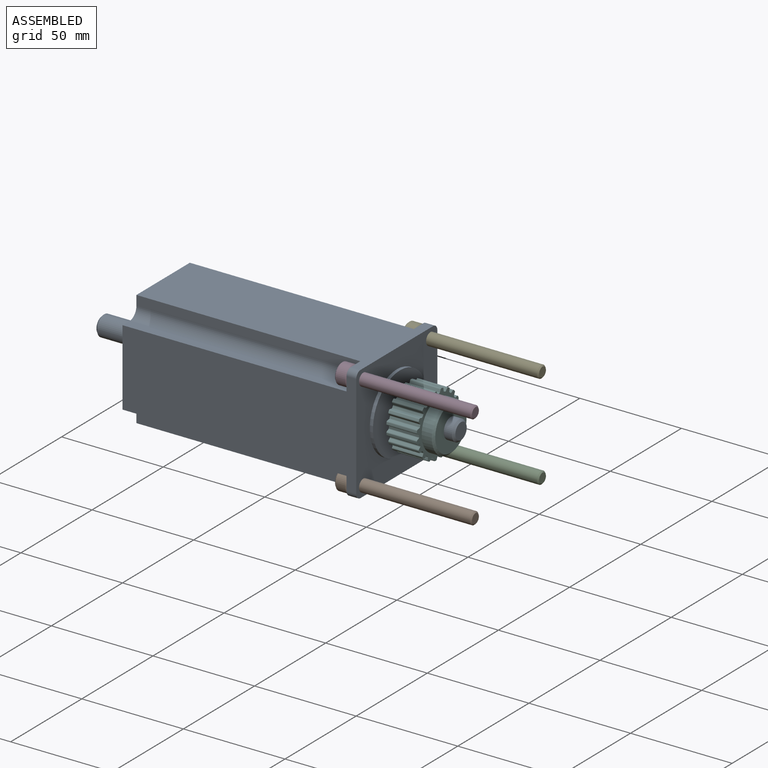
[diagram: assembled view]
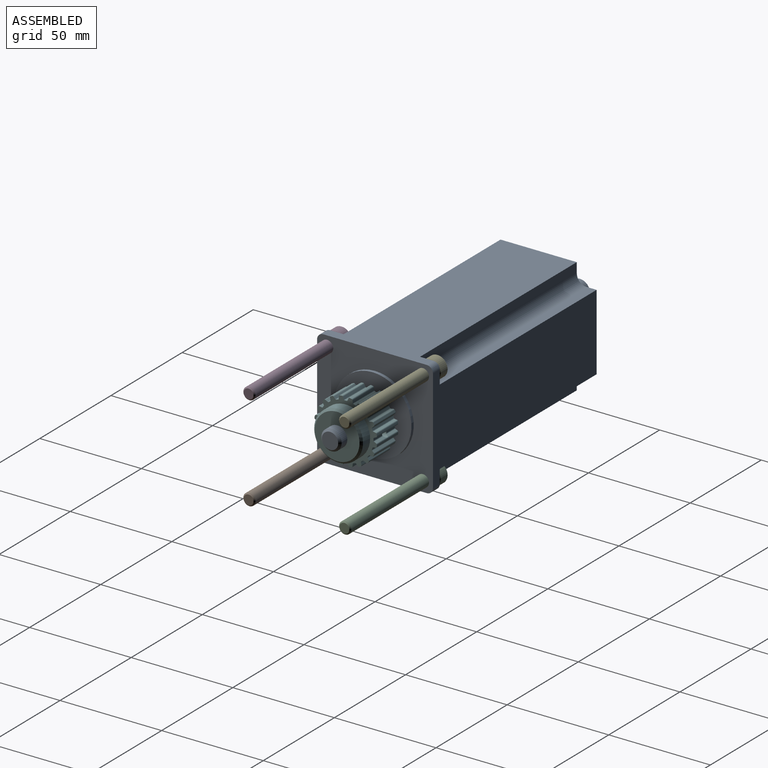
[diagram: assembled view, second angle]
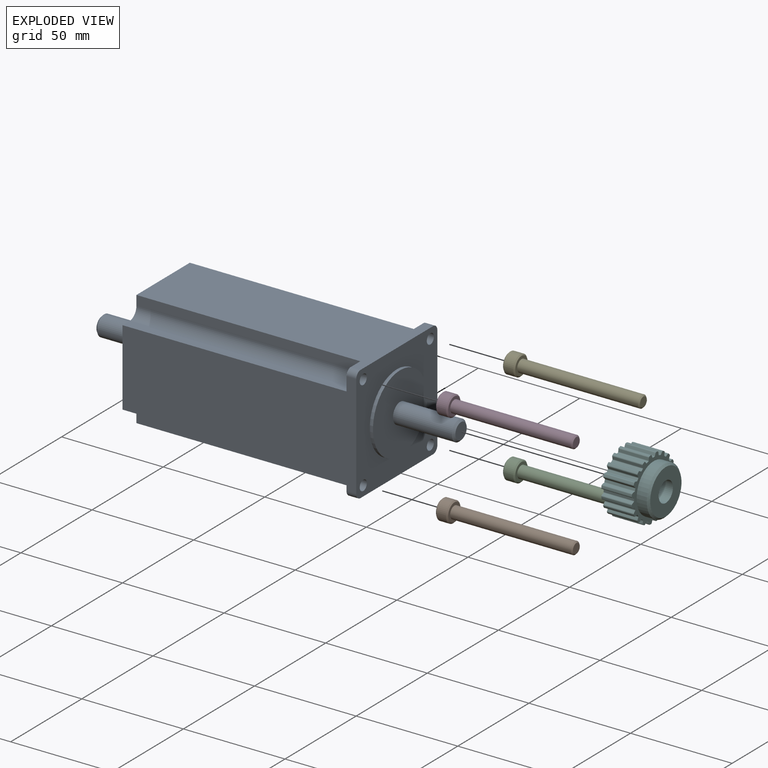
[diagram: exploded view]
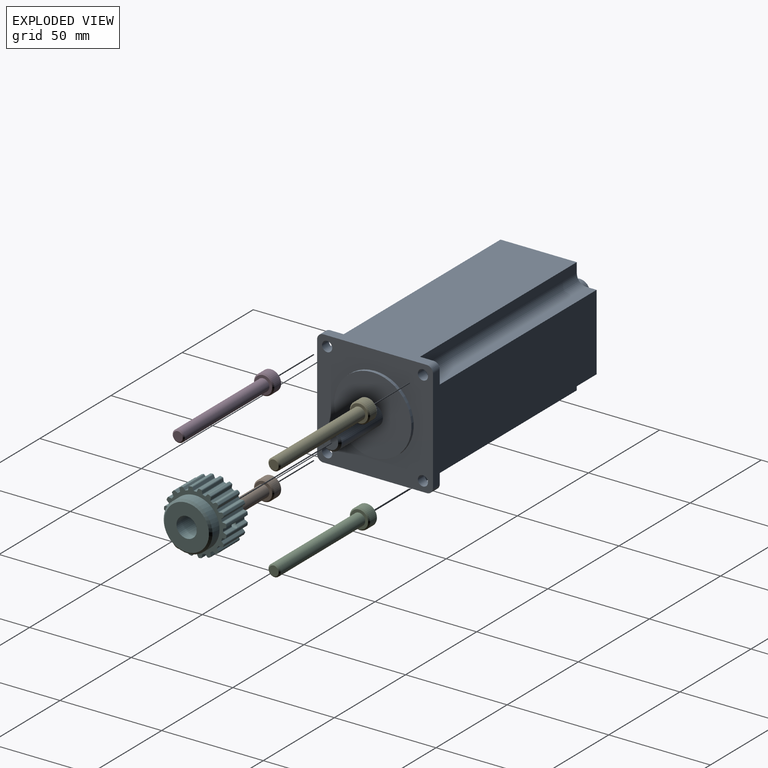
[diagram: exploded view, second angle]
ASSEMBLY  parts=6 mates=5
PART A: 38 faces, bbox 176.6x57x57 mm
  f0: cylinder r=19.05mm len=38.1mm, axis (1,0,0), area 191.5mm2, adj f1,f2
  f1: plane 38.1x38.1mm, normal (1,0,0), area 1061.6mm2, adj f0,f33
  f2: plane 57x57mm, normal (1,0,0), area 2022.6mm2, adj f0,f3,f4,f9,f10,f12,f13,f14
  f3: cylinder r=3mm len=4.8mm, axis (-1,0,0), area 22.6mm2, adj f2,f6,f9,f10
  f4: cylinder r=2.5mm len=5mm, axis (1,0,0), area 75.4mm2, adj f2,f6
  f5: plane 110.2x4.93mm, normal (0,0,1), area 543.3mm2, adj f6,f7,f10,f11
  f6: plane 9.73x9.73mm, normal (-1,0,0), area 68.2mm2, adj f3,f4,f5,f7,f8,f9,f10
  f7: cylinder r=4.8mm len=110.2mm, axis (-1,0,0), area 830.9mm2, adj f5,f6,f8,f11
  f8: plane 110.2x4.93mm, normal (0,-1,0), area 543.3mm2, adj f6,f7,f9,f11
  f9: plane 115x51mm, normal (0,0,1), area 4381.7mm2, adj f2,f3,f6,f8,f11,f16,f24,f25
  f10: plane 115x51mm, normal (0,-1,0), area 4381.7mm2, adj f2,f3,f5,f6,f11,f15,f29,f31
  f11: plane 57x57mm, normal (-1,0,0), area 2811.5mm2, adj f5,f7,f8,f9,f10,f13,f14,f20
  f12: cylinder r=3mm len=4.8mm, axis (-1,0,0), area 22.6mm2, adj f2,f13,f14,f21
  f13: plane 115x51mm, normal (0,0,-1), area 4381.7mm2, adj f2,f11,f12,f15,f21,f23,f28,f29
  f14: plane 115x51mm, normal (0,1,0), area 4381.7mm2, adj f2,f11,f12,f16,f20,f21,f25,f27
  f15: cylinder r=3mm len=4.8mm, axis (-1,0,0), area 22.6mm2, adj f2,f10,f13,f29
  f16: cylinder r=3mm len=4.8mm, axis (-1,0,0), area 22.6mm2, adj f2,f9,f14,f25
  f17: cylinder r=2.5mm len=5mm, axis (1,0,0), area 75.4mm2, adj f2,f29
  f18: cylinder r=2.5mm len=5mm, axis (1,0,0), area 75.4mm2, adj f2,f25
  f19: cylinder r=2.5mm len=5mm, axis (1,0,0), area 75.4mm2, adj f2,f21
  f20: plane 110.2x4.93mm, normal (0,0,-1), area 543.3mm2, adj f11,f14,f21,f22
  f21: plane 9.73x9.73mm, normal (-1,0,0), area 68.2mm2, adj f12,f13,f14,f19,f20,f22,f23
  f22: cylinder r=4.8mm len=110.2mm, axis (-1,0,0), area 830.9mm2, adj f11,f20,f21,f23
  f23: plane 110.2x4.93mm, normal (0,1,0), area 543.3mm2, adj f11,f13,f21,f22
  f24: plane 110.2x4.93mm, normal (0,1,0), area 543.3mm2, adj f9,f11,f25,f26
  f25: plane 9.73x9.73mm, normal (-1,0,0), area 68.2mm2, adj f9,f14,f16,f18,f24,f26,f27
  f26: cylinder r=4.8mm len=110.2mm, axis (-1,0,0), area 830.9mm2, adj f11,f24,f25,f27
  f27: plane 110.2x4.93mm, normal (0,0,1), area 543.3mm2, adj f11,f14,f25,f26
  f28: plane 110.2x4.93mm, normal (0,-1,0), area 543.3mm2, adj f11,f13,f29,f30
  f29: plane 9.73x9.73mm, normal (-1,0,0), area 68.2mm2, adj f10,f13,f15,f17,f28,f30,f31
  f30: cylinder r=4.8mm len=110.2mm, axis (-1,0,0), area 830.9mm2, adj f11,f28,f29,f31
  f31: plane 110.2x4.93mm, normal (0,0,-1), area 543.3mm2, adj f10,f11,f29,f30
  f32: plane 8x8mm, normal (1,0,0), area 50.3mm2, adj f34
  f33: cylinder r=5mm len=29mm, axis (1,0,0), area 911.1mm2, adj f1,f34
  f34: cone r=1mm half-angle=45deg, axis (-1,0,0), area 40mm2, adj f32,f33
  f35: cylinder r=5mm len=29mm, axis (-1,0,0), area 911.1mm2, adj f11,f37
  f36: plane 8x8mm, normal (-1,0,0), area 50.3mm2, adj f37
  f37: cone r=1mm half-angle=45deg, axis (1,0,0), area 40mm2, adj f35,f36
PART B: 15 faces, bbox 66x10x10 mm
  f0: plane 8.8x8.8mm, normal (1,0,0), area 39.2mm2, adj f5,f6,f7,f8,f9,f10,f13
  f1: cylinder r=5mm len=10mm, axis (1,0,0), area 150.8mm2, adj f13,f14
  f2: plane 8.8x8.8mm, normal (-1,0,0), area 32.5mm2, adj f3,f14
  f3: cylinder r=3mm len=59.4mm, axis (1,0,0), area 1119.7mm2, adj f2,f12
  f4: plane 4.8x4.8mm, normal (-1,0,0), area 18.1mm2, adj f12
  f5: plane 4x2.89mm, normal (0,-1,0), area 11.5mm2, adj f0,f6,f10,f11
  f6: plane 4x2.5mm, normal (0,-0.5,-0.87), area 11.5mm2, adj f0,f5,f7,f11
  f7: plane 4x2.5mm, normal (0,0.5,-0.87), area 11.5mm2, adj f0,f6,f8,f11
  f8: plane 4x2.89mm, normal (0,1,0), area 11.5mm2, adj f0,f7,f9,f11
  f9: plane 4x2.5mm, normal (0,0.5,0.87), area 11.5mm2, adj f0,f8,f10,f11
  f10: plane 4x2.5mm, normal (0,-0.5,0.87), area 11.5mm2, adj f0,f5,f9,f11
  f11: plane 5.77x5mm, normal (1,0,0), area 21.7mm2, adj f5,f6,f7,f8,f9,f10
  f12: cone r=3mm half-angle=45deg, axis (1,0,0), area 14.4mm2, adj f3,f4
  f13: cone r=4.4mm half-angle=45deg, axis (-1,0,0), area 25.1mm2, adj f0,f1
  f14: cone r=5mm half-angle=45deg, axis (1,0,0), area 25.1mm2, adj f1,f2
PART C: same geometry as B
PART D: same geometry as B
PART E: same geometry as B
PART F: 178 faces, bbox 21x30.8x30.8 mm
  f0: cylinder r=15.5mm len=15mm, axis (-1,0,0), area 13.1mm2, adj f25,f26,f39,f176
  f1: cylinder r=15.5mm len=15mm, axis (-1,0,0), area 13.1mm2, adj f25,f26,f169,f175
  f2: cylinder r=15.5mm len=15mm, axis (-1,0,0), area 13.1mm2, adj f25,f26,f162,f168
  f3: cylinder r=15.5mm len=15mm, axis (-1,0,0), area 13.1mm2, adj f25,f26,f155,f161
  f4: plane 6.89x1.1mm, normal (0,0.42,-0.91), area 7.9mm2, adj f26,f30,f146,f148
  f5: plane 6.89x1.1mm, normal (0,0.42,0.91), area 7.9mm2, adj f25,f30,f143,f147
  f6: cylinder r=15.5mm len=15mm, axis (-1,0,0), area 13.1mm2, adj f25,f26,f148,f154
  f7: cylinder r=15.5mm len=15mm, axis (-1,0,0), area 13.1mm2, adj f25,f26,f138,f147
  f8: cylinder r=15.5mm len=15mm, axis (-1,0,0), area 13.1mm2, adj f25,f26,f131,f137
  f9: cylinder r=15.5mm len=15mm, axis (-1,0,0), area 13.1mm2, adj f25,f26,f124,f130
  f10: cylinder r=15.5mm len=15mm, axis (-1,0,0), area 13.1mm2, adj f25,f26,f117,f123
  f11: cylinder r=15.5mm len=15mm, axis (-1,0,0), area 13.1mm2, adj f25,f26,f110,f116
  f12: cylinder r=15.5mm len=15mm, axis (-1,0,0), area 13.1mm2, adj f25,f26,f103,f109
  f13: cylinder r=15.5mm len=15mm, axis (-1,0,0), area 13.1mm2, adj f25,f26,f96,f102
  f14: cylinder r=15.5mm len=15mm, axis (-1,0,0), area 13.1mm2, adj f25,f26,f89,f95
  f15: cylinder r=15.5mm len=15mm, axis (-1,0,0), area 13.1mm2, adj f25,f26,f82,f88
  f16: cylinder r=15.5mm len=15mm, axis (-1,0,0), area 13.1mm2, adj f25,f26,f75,f81
  f17: cylinder r=15.5mm len=15mm, axis (-1,0,0), area 13.1mm2, adj f25,f26,f68,f74
  f18: cylinder r=15.5mm len=15mm, axis (-1,0,0), area 13.1mm2, adj f25,f26,f61,f67
  f19: cylinder r=15.5mm len=15mm, axis (-1,0,0), area 13.1mm2, adj f25,f26,f54,f60
  f20: cylinder r=15.5mm len=15mm, axis (-1,0,0), area 13.1mm2, adj f25,f26,f47,f53
  f21: plane 6.89x1.1mm, normal (0,0.91,0.42), area 7.9mm2, adj f26,f29,f38,f40
  f22: plane 6.89x1.1mm, normal (0,-0.91,0.42), area 7.9mm2, adj f25,f29,f35,f39
  f23: cylinder r=5mm len=21mm, axis (-1,0,0), area 645.4mm2, adj f25,f28,f29,f30
  f24: cylinder r=15.5mm len=15mm, axis (-1,0,0), area 13.1mm2, adj f25,f26,f40,f46
  f25: plane 30.75x30.75mm, normal (1,0,0), area 592.7mm2, adj f0,f1,f2,f3,f5,f6,f7,f8
  f26: plane 30.75x30.75mm, normal (-1,0,0), area 218.9mm2, adj f0,f1,f2,f3,f4,f6,f7,f8
  f27: cylinder r=12mm len=24mm, axis (1,0,0), area 377mm2, adj f26,f177
  f28: plane 22x22mm, normal (-1,0,0), area 301.6mm2, adj f23,f177
  f29: cylinder r=1.5mm len=10.44mm, axis (0,0,-1), area 89.6mm2, adj f21,f22,f23,f31,f32,f33,f34,f35
  f30: cylinder r=1.5mm len=10.44mm, axis (0,-1,0), area 89.6mm2, adj f4,f5,f23,f139,f140,f141,f142,f143
  f31: plane 6.08x0.99mm, normal (0,0,1), area 6mm2, adj f26,f29,f37,f38
  f32: plane 6.08x0.99mm, normal (0,0,1), area 6mm2, adj f25,f29,f35,f36
  f33: plane 6.89x1.1mm, normal (0,-0.91,0.42), area 7.9mm2, adj f26,f29,f37,f39
  f34: plane 6.89x1.1mm, normal (0,0.91,0.42), area 7.9mm2, adj f25,f29,f36,f40
  f35: cylinder r=0.4mm len=6.27mm, axis (-1,0,0), area 2.8mm2, adj f22,f25,f29,f32
  f36: cylinder r=0.4mm len=6.27mm, axis (-1,0,0), area 2.8mm2, adj f25,f29,f32,f34
  f37: cylinder r=0.4mm len=6.27mm, axis (-1,0,0), area 2.8mm2, adj f26,f29,f31,f33
  f38: cylinder r=0.4mm len=6.27mm, axis (-1,0,0), area 2.8mm2, adj f21,f26,f29,f31
  f39: cylinder r=0.6mm len=15mm, axis (-1,0,0), area 11.2mm2, adj f0,f22,f25,f26,f29,f33
  f40: cylinder r=0.6mm len=15mm, axis (-1,0,0), area 11.2mm2, adj f21,f24,f25,f26,f29,f34
  f41: plane 15x0.94mm, normal (0,-0.31,0.95), area 14.9mm2, adj f25,f26,f44,f45
  f42: plane 15x1.2mm, normal (0,-0.99,0.12), area 18.2mm2, adj f25,f26,f44,f46
  f43: plane 15x0.89mm, normal (0,0.73,0.68), area 18.2mm2, adj f25,f26,f45,f47
  f44: cylinder r=0.4mm len=15mm, axis (-1,0,0), area 6.8mm2, adj f25,f26,f41,f42
  f45: cylinder r=0.4mm len=15mm, axis (-1,0,0), area 6.8mm2, adj f25,f26,f41,f43
  f46: cylinder r=0.6mm len=15mm, axis (-1,0,0), area 11.4mm2, adj f24,f25,f26,f42
  f47: cylinder r=0.6mm len=15mm, axis (-1,0,0), area 11.4mm2, adj f20,f25,f26,f43
  f48: plane 15x0.8mm, normal (0,-0.59,0.81), area 14.9mm2, adj f25,f26,f51,f52
  f49: plane 15x1.19mm, normal (0,-0.98,-0.19), area 18.2mm2, adj f25,f26,f51,f53
  f50: plane 15x1.06mm, normal (0,0.48,0.87), area 18.2mm2, adj f25,f26,f52,f54
  f51: cylinder r=0.4mm len=15mm, axis (-1,0,0), area 6.8mm2, adj f25,f26,f48,f49
  f52: cylinder r=0.4mm len=15mm, axis (-1,0,0), area 6.8mm2, adj f25,f26,f48,f50
  f53: cylinder r=0.6mm len=15mm, axis (-1,0,0), area 11.4mm2, adj f20,f25,f26,f49
  f54: cylinder r=0.6mm len=15mm, axis (-1,0,0), area 11.4mm2, adj f19,f25,f26,f50
  f55: plane 15x0.8mm, normal (0,-0.81,0.59), area 14.9mm2, adj f25,f26,f58,f59
  f56: plane 15x1.06mm, normal (0,-0.87,-0.48), area 18.2mm2, adj f25,f26,f58,f60
  f57: plane 15x1.19mm, normal (0,0.19,0.98), area 18.2mm2, adj f25,f26,f59,f61
  f58: cylinder r=0.4mm len=15mm, axis (-1,0,0), area 6.8mm2, adj f25,f26,f55,f56
  f59: cylinder r=0.4mm len=15mm, axis (-1,0,0), area 6.8mm2, adj f25,f26,f55,f57
  f60: cylinder r=0.6mm len=15mm, axis (-1,0,0), area 11.4mm2, adj f19,f25,f26,f56
  f61: cylinder r=0.6mm len=15mm, axis (-1,0,0), area 11.4mm2, adj f18,f25,f26,f57
  f62: plane 15x0.94mm, normal (0,-0.95,0.31), area 14.9mm2, adj f25,f26,f65,f66
  f63: plane 15x0.89mm, normal (0,-0.68,-0.73), area 18.2mm2, adj f25,f26,f65,f67
  f64: plane 15x1.2mm, normal (0,-0.12,0.99), area 18.2mm2, adj f25,f26,f66,f68
  f65: cylinder r=0.4mm len=15mm, axis (-1,0,0), area 6.8mm2, adj f25,f26,f62,f63
  f66: cylinder r=0.4mm len=15mm, axis (-1,0,0), area 6.8mm2, adj f25,f26,f62,f64
  f67: cylinder r=0.6mm len=15mm, axis (-1,0,0), area 11.4mm2, adj f18,f25,f26,f63
  f68: cylinder r=0.6mm len=15mm, axis (-1,0,0), area 11.4mm2, adj f17,f25,f26,f64
  f69: plane 15x0.99mm, normal (0,-1,0), area 14.9mm2, adj f25,f26,f72,f73
  f70: plane 15x1.1mm, normal (0,-0.42,-0.91), area 18.2mm2, adj f25,f26,f72,f74
  f71: plane 15x1.1mm, normal (0,-0.42,0.91), area 18.2mm2, adj f25,f26,f73,f75
  f72: cylinder r=0.4mm len=15mm, axis (-1,0,0), area 6.8mm2, adj f25,f26,f69,f70
  f73: cylinder r=0.4mm len=15mm, axis (-1,0,0), area 6.8mm2, adj f25,f26,f69,f71
  f74: cylinder r=0.6mm len=15mm, axis (-1,0,0), area 11.4mm2, adj f17,f25,f26,f70
  f75: cylinder r=0.6mm len=15mm, axis (-1,0,0), area 11.4mm2, adj f16,f25,f26,f71
  f76: plane 15x0.94mm, normal (0,-0.95,-0.31), area 14.9mm2, adj f25,f26,f79,f80
  f77: plane 15x1.2mm, normal (0,-0.12,-0.99), area 18.2mm2, adj f25,f26,f79,f81
  f78: plane 15x0.89mm, normal (0,-0.68,0.73), area 18.2mm2, adj f25,f26,f80,f82
  f79: cylinder r=0.4mm len=15mm, axis (-1,0,0), area 6.8mm2, adj f25,f26,f76,f77
  f80: cylinder r=0.4mm len=15mm, axis (-1,0,0), area 6.8mm2, adj f25,f26,f76,f78
  f81: cylinder r=0.6mm len=15mm, axis (-1,0,0), area 11.4mm2, adj f16,f25,f26,f77
  f82: cylinder r=0.6mm len=15mm, axis (-1,0,0), area 11.4mm2, adj f15,f25,f26,f78
  f83: plane 15x0.8mm, normal (0,-0.81,-0.59), area 14.9mm2, adj f25,f26,f86,f87
  f84: plane 15x1.19mm, normal (0,0.19,-0.98), area 18.2mm2, adj f25,f26,f86,f88
  f85: plane 15x1.06mm, normal (0,-0.87,0.48), area 18.2mm2, adj f25,f26,f87,f89
  f86: cylinder r=0.4mm len=15mm, axis (-1,0,0), area 6.8mm2, adj f25,f26,f83,f84
  f87: cylinder r=0.4mm len=15mm, axis (-1,0,0), area 6.8mm2, adj f25,f26,f83,f85
  f88: cylinder r=0.6mm len=15mm, axis (-1,0,0), area 11.4mm2, adj f15,f25,f26,f84
  f89: cylinder r=0.6mm len=15mm, axis (-1,0,0), area 11.4mm2, adj f14,f25,f26,f85
  f90: plane 15x0.8mm, normal (0,-0.59,-0.81), area 14.9mm2, adj f25,f26,f93,f94
  f91: plane 15x1.06mm, normal (0,0.48,-0.87), area 18.2mm2, adj f25,f26,f93,f95
  f92: plane 15x1.19mm, normal (0,-0.98,0.19), area 18.2mm2, adj f25,f26,f94,f96
  f93: cylinder r=0.4mm len=15mm, axis (-1,0,0), area 6.8mm2, adj f25,f26,f90,f91
  f94: cylinder r=0.4mm len=15mm, axis (-1,0,0), area 6.8mm2, adj f25,f26,f90,f92
  f95: cylinder r=0.6mm len=15mm, axis (-1,0,0), area 11.4mm2, adj f14,f25,f26,f91
  f96: cylinder r=0.6mm len=15mm, axis (-1,0,0), area 11.4mm2, adj f13,f25,f26,f92
  f97: plane 15x0.94mm, normal (0,-0.31,-0.95), area 14.9mm2, adj f25,f26,f100,f101
  f98: plane 15x0.89mm, normal (0,0.73,-0.68), area 18.2mm2, adj f25,f26,f100,f102
  f99: plane 15x1.2mm, normal (0,-0.99,-0.12), area 18.2mm2, adj f25,f26,f101,f103
  f100: cylinder r=0.4mm len=15mm, axis (-1,0,0), area 6.8mm2, adj f25,f26,f97,f98
  f101: cylinder r=0.4mm len=15mm, axis (-1,0,0), area 6.8mm2, adj f25,f26,f97,f99
  f102: cylinder r=0.6mm len=15mm, axis (-1,0,0), area 11.4mm2, adj f13,f25,f26,f98
  f103: cylinder r=0.6mm len=15mm, axis (-1,0,0), area 11.4mm2, adj f12,f25,f26,f99
  f104: plane 15x0.99mm, normal (0,0,-1), area 14.9mm2, adj f25,f26,f107,f108
  f105: plane 15x1.1mm, normal (0,0.91,-0.42), area 18.2mm2, adj f25,f26,f107,f109
  f106: plane 15x1.1mm, normal (0,-0.91,-0.42), area 18.2mm2, adj f25,f26,f108,f110
  f107: cylinder r=0.4mm len=15mm, axis (-1,0,0), area 6.8mm2, adj f25,f26,f104,f105
  f108: cylinder r=0.4mm len=15mm, axis (-1,0,0), area 6.8mm2, adj f25,f26,f104,f106
  f109: cylinder r=0.6mm len=15mm, axis (-1,0,0), area 11.4mm2, adj f12,f25,f26,f105
  f110: cylinder r=0.6mm len=15mm, axis (-1,0,0), area 11.4mm2, adj f11,f25,f26,f106
  f111: plane 15x0.94mm, normal (0,0.31,-0.95), area 14.9mm2, adj f25,f26,f114,f115
  f112: plane 15x1.2mm, normal (0,0.99,-0.12), area 18.2mm2, adj f25,f26,f114,f116
  f113: plane 15x0.89mm, normal (0,-0.73,-0.68), area 18.2mm2, adj f25,f26,f115,f117
  f114: cylinder r=0.4mm len=15mm, axis (-1,0,0), area 6.8mm2, adj f25,f26,f111,f112
  f115: cylinder r=0.4mm len=15mm, axis (-1,0,0), area 6.8mm2, adj f25,f26,f111,f113
  f116: cylinder r=0.6mm len=15mm, axis (-1,0,0), area 11.4mm2, adj f11,f25,f26,f112
  f117: cylinder r=0.6mm len=15mm, axis (-1,0,0), area 11.4mm2, adj f10,f25,f26,f113
  f118: plane 15x0.8mm, normal (0,0.59,-0.81), area 14.9mm2, adj f25,f26,f121,f122
  f119: plane 15x1.19mm, normal (0,0.98,0.19), area 18.2mm2, adj f25,f26,f121,f123
  f120: plane 15x1.06mm, normal (0,-0.48,-0.87), area 18.2mm2, adj f25,f26,f122,f124
  f121: cylinder r=0.4mm len=15mm, axis (-1,0,0), area 6.8mm2, adj f25,f26,f118,f119
  f122: cylinder r=0.4mm len=15mm, axis (-1,0,0), area 6.8mm2, adj f25,f26,f118,f120
  f123: cylinder r=0.6mm len=15mm, axis (-1,0,0), area 11.4mm2, adj f10,f25,f26,f119
  f124: cylinder r=0.6mm len=15mm, axis (-1,0,0), area 11.4mm2, adj f9,f25,f26,f120
  f125: plane 15x0.8mm, normal (0,0.81,-0.59), area 14.9mm2, adj f25,f26,f128,f129
  f126: plane 15x1.06mm, normal (0,0.87,0.48), area 18.2mm2, adj f25,f26,f128,f130
  f127: plane 15x1.19mm, normal (0,-0.19,-0.98), area 18.2mm2, adj f25,f26,f129,f131
  f128: cylinder r=0.4mm len=15mm, axis (-1,0,0), area 6.8mm2, adj f25,f26,f125,f126
  f129: cylinder r=0.4mm len=15mm, axis (-1,0,0), area 6.8mm2, adj f25,f26,f125,f127
  f130: cylinder r=0.6mm len=15mm, axis (-1,0,0), area 11.4mm2, adj f9,f25,f26,f126
  f131: cylinder r=0.6mm len=15mm, axis (-1,0,0), area 11.4mm2, adj f8,f25,f26,f127
  f132: plane 15x0.94mm, normal (0,0.95,-0.31), area 14.9mm2, adj f25,f26,f135,f136
  f133: plane 15x0.89mm, normal (0,0.68,0.73), area 18.2mm2, adj f25,f26,f135,f137
  f134: plane 15x1.2mm, normal (0,0.12,-0.99), area 18.2mm2, adj f25,f26,f136,f138
  f135: cylinder r=0.4mm len=15mm, axis (-1,0,0), area 6.8mm2, adj f25,f26,f132,f133
  f136: cylinder r=0.4mm len=15mm, axis (-1,0,0), area 6.8mm2, adj f25,f26,f132,f134
  f137: cylinder r=0.6mm len=15mm, axis (-1,0,0), area 11.4mm2, adj f8,f25,f26,f133
  f138: cylinder r=0.6mm len=15mm, axis (-1,0,0), area 11.4mm2, adj f7,f25,f26,f134
  f139: plane 6.08x0.99mm, normal (0,1,0), area 6mm2, adj f26,f30,f145,f146
  f140: plane 6.08x0.99mm, normal (0,1,0), area 6mm2, adj f25,f30,f143,f144
  f141: plane 6.89x1.1mm, normal (0,0.42,0.91), area 7.9mm2, adj f26,f30,f145,f147
  f142: plane 6.89x1.1mm, normal (0,0.42,-0.91), area 7.9mm2, adj f25,f30,f144,f148
  f143: cylinder r=0.4mm len=6.27mm, axis (-1,0,0), area 2.8mm2, adj f5,f25,f30,f140
  f144: cylinder r=0.4mm len=6.27mm, axis (-1,0,0), area 2.8mm2, adj f25,f30,f140,f142
  f145: cylinder r=0.4mm len=6.27mm, axis (-1,0,0), area 2.8mm2, adj f26,f30,f139,f141
  f146: cylinder r=0.4mm len=6.27mm, axis (-1,0,0), area 2.8mm2, adj f4,f26,f30,f139
  f147: cylinder r=0.6mm len=15mm, axis (-1,0,0), area 11.2mm2, adj f5,f7,f25,f26,f30,f141
  f148: cylinder r=0.6mm len=15mm, axis (-1,0,0), area 11.2mm2, adj f4,f6,f25,f26,f30,f142
  f149: plane 15x0.94mm, normal (0,0.95,0.31), area 14.9mm2, adj f25,f26,f152,f153
  f150: plane 15x1.2mm, normal (0,0.12,0.99), area 18.2mm2, adj f25,f26,f152,f154
  f151: plane 15x0.89mm, normal (0,0.68,-0.73), area 18.2mm2, adj f25,f26,f153,f155
  f152: cylinder r=0.4mm len=15mm, axis (-1,0,0), area 6.8mm2, adj f25,f26,f149,f150
  f153: cylinder r=0.4mm len=15mm, axis (-1,0,0), area 6.8mm2, adj f25,f26,f149,f151
  f154: cylinder r=0.6mm len=15mm, axis (-1,0,0), area 11.4mm2, adj f6,f25,f26,f150
  f155: cylinder r=0.6mm len=15mm, axis (-1,0,0), area 11.4mm2, adj f3,f25,f26,f151
  f156: plane 15x0.8mm, normal (0,0.81,0.59), area 14.9mm2, adj f25,f26,f159,f160
  f157: plane 15x1.19mm, normal (0,-0.19,0.98), area 18.2mm2, adj f25,f26,f159,f161
  f158: plane 15x1.06mm, normal (0,0.87,-0.48), area 18.2mm2, adj f25,f26,f160,f162
  f159: cylinder r=0.4mm len=15mm, axis (-1,0,0), area 6.8mm2, adj f25,f26,f156,f157
  f160: cylinder r=0.4mm len=15mm, axis (-1,0,0), area 6.8mm2, adj f25,f26,f156,f158
  f161: cylinder r=0.6mm len=15mm, axis (-1,0,0), area 11.4mm2, adj f3,f25,f26,f157
  f162: cylinder r=0.6mm len=15mm, axis (-1,0,0), area 11.4mm2, adj f2,f25,f26,f158
  f163: plane 15x0.8mm, normal (0,0.59,0.81), area 14.9mm2, adj f25,f26,f166,f167
  f164: plane 15x1.06mm, normal (0,-0.48,0.87), area 18.2mm2, adj f25,f26,f166,f168
  f165: plane 15x1.19mm, normal (0,0.98,-0.19), area 18.2mm2, adj f25,f26,f167,f169
  f166: cylinder r=0.4mm len=15mm, axis (-1,0,0), area 6.8mm2, adj f25,f26,f163,f164
  f167: cylinder r=0.4mm len=15mm, axis (-1,0,0), area 6.8mm2, adj f25,f26,f163,f165
  f168: cylinder r=0.6mm len=15mm, axis (-1,0,0), area 11.4mm2, adj f2,f25,f26,f164
  f169: cylinder r=0.6mm len=15mm, axis (-1,0,0), area 11.4mm2, adj f1,f25,f26,f165
  f170: plane 15x0.94mm, normal (0,0.31,0.95), area 14.9mm2, adj f25,f26,f173,f174
  f171: plane 15x0.89mm, normal (0,-0.73,0.68), area 18.2mm2, adj f25,f26,f173,f175
  f172: plane 15x1.2mm, normal (0,0.99,0.12), area 18.2mm2, adj f25,f26,f174,f176
  f173: cylinder r=0.4mm len=15mm, axis (-1,0,0), area 6.8mm2, adj f25,f26,f170,f171
  f174: cylinder r=0.4mm len=15mm, axis (-1,0,0), area 6.8mm2, adj f25,f26,f170,f172
  f175: cylinder r=0.6mm len=15mm, axis (-1,0,0), area 11.4mm2, adj f1,f25,f26,f171
  f176: cylinder r=0.6mm len=15mm, axis (-1,0,0), area 11.4mm2, adj f0,f25,f26,f172
  f177: cone r=11mm half-angle=45deg, axis (1,0,0), area 102.2mm2, adj f27,f28
PLACE A at identity fixed
PLACE B rot(axis=(0,1,0),180deg) t=(-4.8,-23.57,-23.57)mm
PLACE C rot(axis=(0,1,0),180deg) t=(-4.8,23.57,-23.57)mm
PLACE D rot(axis=(0,1,0),180deg) t=(-4.8,-23.57,23.57)mm
PLACE E rot(axis=(0,1,0),180deg) t=(-4.8,23.57,23.57)mm
PLACE F rot(axis=(0,1,0),180deg) t=(13.1,0,0)mm
MATE fastened D.f1 <-> A.f4  axis (1,0,0) through (-4.8,-23.57,23.57)mm
MATE fastened E.f1 <-> A.f18  axis (1,0,0) through (-4.8,23.57,23.57)mm
MATE fastened B.f1 <-> A.f17  axis (1,0,0) through (-4.8,-23.57,-23.57)mm
MATE fastened F.f0 <-> A.f0  axis (1,0,0) through (16.1,0,0)mm
MATE fastened C.f1 <-> A.f19  axis (1,0,0) through (-4.8,23.57,-23.57)mm
